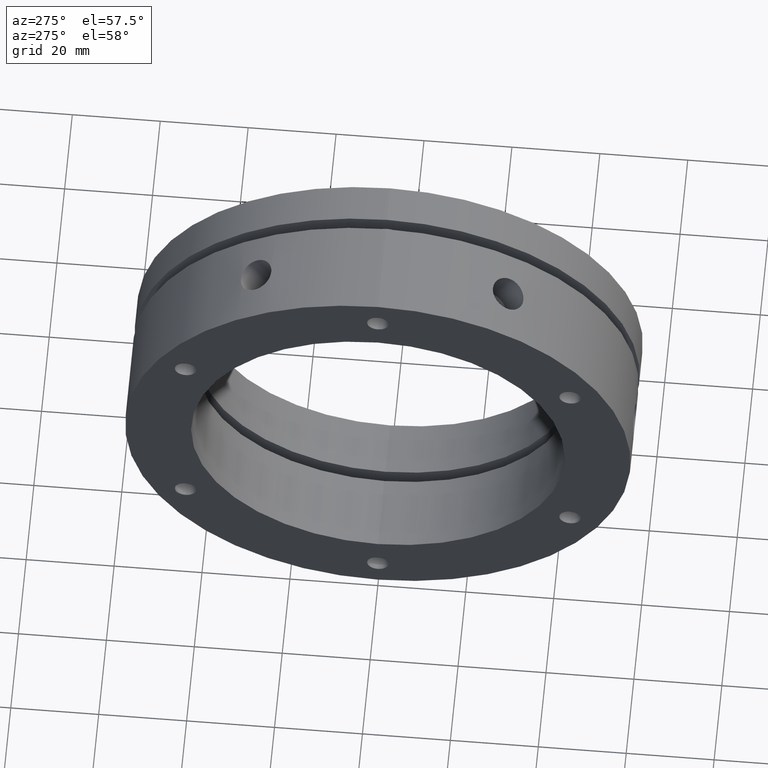
[diagram: clean part render]
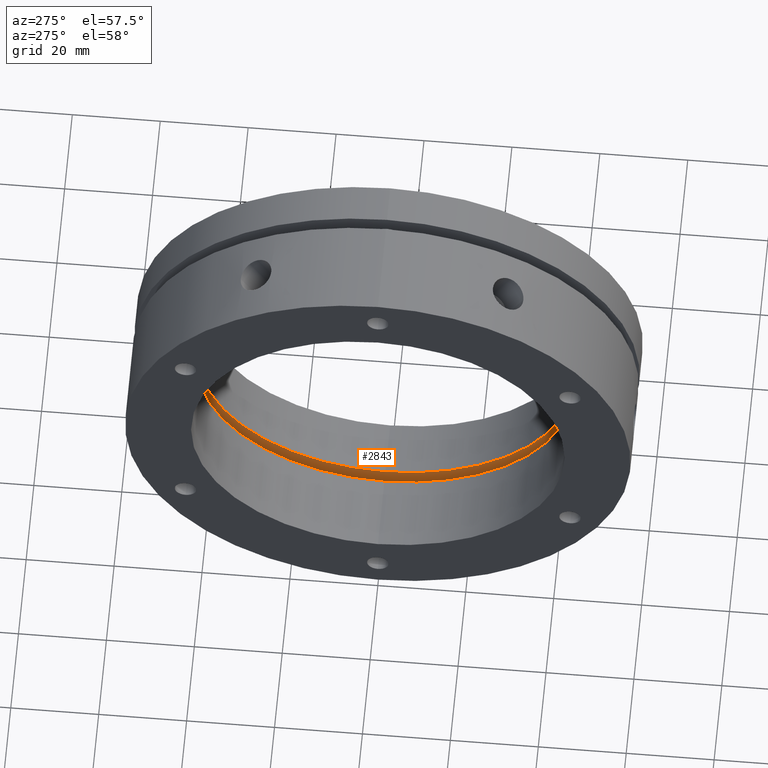
[diagram: same view with one face highlighted and labeled with its STEP entity id]
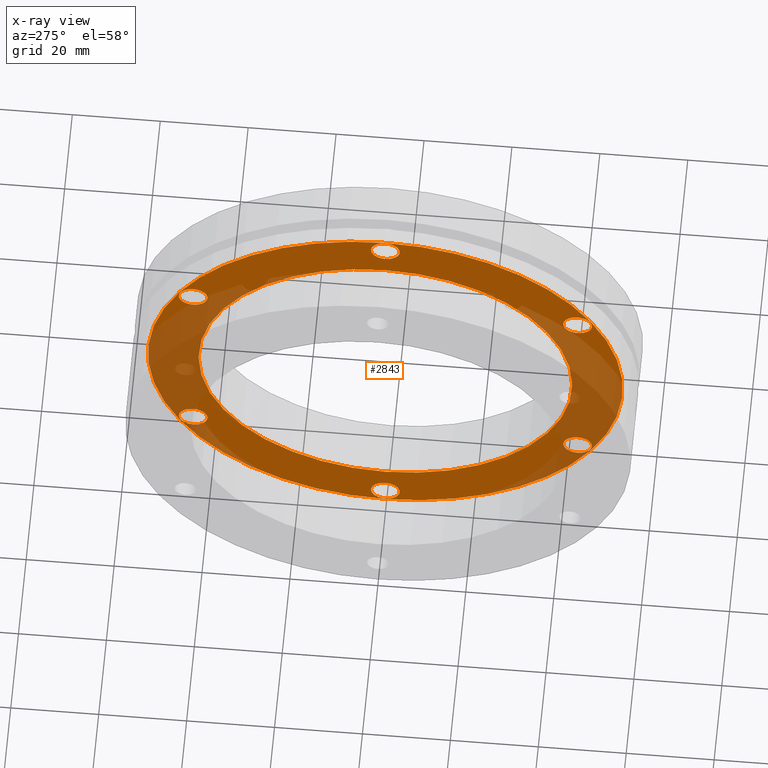
[diagram: x-ray of the same camera — body ghosted, the highlighted face saturated]
A machine part, auxiliary view. The second image highlights one B-rep face of the part: STEP entity #2843.
The next image is the same camera in x-ray: the body ghosted, the highlighted face saturated — about 36% of this face is hidden behind the body in this view.
In plain terms, the highlighted planar face has unit normal (1, 0, 0).
Its self-contained STEP definition (entity closure, byte-faithful):
#13 = EDGE_LOOP ( 'NONE', ( #1024, #1023 ) ) ;
#14 = EDGE_LOOP ( 'NONE', ( #1020, #1019 ) ) ;
#71 = EDGE_LOOP ( 'NONE', ( #1028, #1027 ) ) ;
#76 = EDGE_LOOP ( 'NONE', ( #1030, #1029 ) ) ;
#83 = EDGE_LOOP ( 'NONE', ( #1034, #1033 ) ) ;
#84 = EDGE_LOOP ( 'NONE', ( #1026, #1025 ) ) ;
#93 = EDGE_LOOP ( 'NONE', ( #1022, #1021 ) ) ;
#109 = EDGE_LOOP ( 'NONE', ( #1032, #1031 ) ) ;
#302 = VERTEX_POINT ( 'NONE', #1290 ) ;
#328 = VERTEX_POINT ( 'NONE', #1319 ) ;
#336 = VERTEX_POINT ( 'NONE', #1327 ) ;
#362 = VERTEX_POINT ( 'NONE', #1353 ) ;
#363 = VERTEX_POINT ( 'NONE', #1354 ) ;
#365 = VERTEX_POINT ( 'NONE', #1356 ) ;
#370 = VERTEX_POINT ( 'NONE', #1361 ) ;
#380 = VERTEX_POINT ( 'NONE', #1371 ) ;
#395 = VERTEX_POINT ( 'NONE', #1386 ) ;
#409 = VERTEX_POINT ( 'NONE', #1400 ) ;
#422 = VERTEX_POINT ( 'NONE', #1494 ) ;
#428 = VERTEX_POINT ( 'NONE', #1810 ) ;
#430 = VERTEX_POINT ( 'NONE', #1812 ) ;
#436 = VERTEX_POINT ( 'NONE', #1818 ) ;
#479 = VERTEX_POINT ( 'NONE', #1861 ) ;
#487 = VERTEX_POINT ( 'NONE', #1869 ) ;
#550 = AXIS2_PLACEMENT_3D ( 'NONE', #2345, #2346, #2347 ) ;
#552 = AXIS2_PLACEMENT_3D ( 'NONE', #2335, #2336, #2337 ) ;
#652 = EDGE_CURVE ( 'NONE', #422, #365, #4244, .T. ) ;
#656 = EDGE_CURVE ( 'NONE', #380, #479, #4251, .T. ) ;
#660 = EDGE_CURVE ( 'NONE', #328, #302, #4257, .T. ) ;
#664 = EDGE_CURVE ( 'NONE', #363, #336, #4263, .T. ) ;
#668 = EDGE_CURVE ( 'NONE', #436, #395, #4269, .T. ) ;
#672 = EDGE_CURVE ( 'NONE', #362, #409, #4275, .T. ) ;
#676 = EDGE_CURVE ( 'NONE', #370, #487, #4281, .T. ) ;
#708 = EDGE_CURVE ( 'NONE', #430, #428, #4328, .T. ) ;
#747 = AXIS2_PLACEMENT_3D ( 'NONE', #2694, #2695, #2696 ) ;
#785 = AXIS2_PLACEMENT_3D ( 'NONE', #2475, #2476, #2477 ) ;
#788 = AXIS2_PLACEMENT_3D ( 'NONE', #2355, #2356, #2357 ) ;
#816 = AXIS2_PLACEMENT_3D ( 'NONE', #2968, #2969, #2970 ) ;
#819 = AXIS2_PLACEMENT_3D ( 'NONE', #2959, #2960, #2961 ) ;
#833 = AXIS2_PLACEMENT_3D ( 'NONE', #2757, #2758, #2759 ) ;
#834 = AXIS2_PLACEMENT_3D ( 'NONE', #2753, #2754, #2755 ) ;
#835 = AXIS2_PLACEMENT_3D ( 'NONE', #2748, #2749, #2750 ) ;
#849 = AXIS2_PLACEMENT_3D ( 'NONE', #2365, #2366, #2367 ) ;
#850 = AXIS2_PLACEMENT_3D ( 'NONE', #2375, #2376, #2377 ) ;
#852 = AXIS2_PLACEMENT_3D ( 'NONE', #2385, #2386, #2387 ) ;
#855 = AXIS2_PLACEMENT_3D ( 'NONE', #2733, #2734, #2735 ) ;
#858 = AXIS2_PLACEMENT_3D ( 'NONE', #2730, #2731, #2732 ) ;
#867 = AXIS2_PLACEMENT_3D ( 'NONE', #2396, #2397, #2398 ) ;
#1019 = ORIENTED_EDGE ( 'NONE', *, *, #1674, .F. ) ;
#1020 = ORIENTED_EDGE ( 'NONE', *, *, #676, .F. ) ;
#1021 = ORIENTED_EDGE ( 'NONE', *, *, #672, .T. ) ;
#1022 = ORIENTED_EDGE ( 'NONE', *, *, #1650, .T. ) ;
#1023 = ORIENTED_EDGE ( 'NONE', *, *, #668, .T. ) ;
#1024 = ORIENTED_EDGE ( 'NONE', *, *, #1638, .T. ) ;
#1025 = ORIENTED_EDGE ( 'NONE', *, *, #664, .T. ) ;
#1026 = ORIENTED_EDGE ( 'NONE', *, *, #1651, .T. ) ;
#1027 = ORIENTED_EDGE ( 'NONE', *, *, #660, .T. ) ;
#1028 = ORIENTED_EDGE ( 'NONE', *, *, #1656, .T. ) ;
#1029 = ORIENTED_EDGE ( 'NONE', *, *, #656, .T. ) ;
#1030 = ORIENTED_EDGE ( 'NONE', *, *, #1658, .T. ) ;
#1031 = ORIENTED_EDGE ( 'NONE', *, *, #652, .T. ) ;
#1032 = ORIENTED_EDGE ( 'NONE', *, *, #1657, .T. ) ;
#1033 = ORIENTED_EDGE ( 'NONE', *, *, #1677, .F. ) ;
#1034 = ORIENTED_EDGE ( 'NONE', *, *, #708, .F. ) ;
#1290 = CARTESIAN_POINT ( 'NONE',  ( 19.49999999999998900, -43.73428289111417700, -28.50000000000000400 ) ) ;
#1319 = CARTESIAN_POINT ( 'NONE',  ( 19.49999999999998900, -43.73428289111417700, -22.00000000000000700 ) ) ;
#1327 = CARTESIAN_POINT ( 'NONE',  ( 19.49999999999998900, -8.881783999999999800E-015, -53.75000000000004300 ) ) ;
#1353 = CARTESIAN_POINT ( 'NONE',  ( 19.49999999999998900, 43.73428289111419800, 28.49999999999997900 ) ) ;
#1354 = CARTESIAN_POINT ( 'NONE',  ( 19.49999999999998900, -8.483773790277109000E-015, -47.25000000000003600 ) ) ;
#1356 = CARTESIAN_POINT ( 'NONE',  ( 19.49999999999998900, 0.0000000000000000000, 47.25000000000002800 ) ) ;
#1361 = CARTESIAN_POINT ( 'NONE',  ( 19.49999999999999600, 0.0000000000000000000, 54.00000000000000000 ) ) ;
#1371 = CARTESIAN_POINT ( 'NONE',  ( 19.49999999999998900, -43.73428289111416900, 28.50000000000001800 ) ) ;
#1386 = CARTESIAN_POINT ( 'NONE',  ( 19.49999999999998900, 43.73428289111416200, -28.50000000000003600 ) ) ;
#1400 = CARTESIAN_POINT ( 'NONE',  ( 19.49999999999998900, 43.73428289111419800, 21.99999999999998200 ) ) ;
#1494 = CARTESIAN_POINT ( 'NONE',  ( 19.49999999999998900, 3.980102097228895300E-016, 53.75000000000003600 ) ) ;
#1638 = EDGE_CURVE ( 'NONE', #395, #436, #4446, .T. ) ;
#1650 = EDGE_CURVE ( 'NONE', #409, #362, #4458, .T. ) ;
#1651 = EDGE_CURVE ( 'NONE', #336, #363, #4459, .T. ) ;
#1656 = EDGE_CURVE ( 'NONE', #302, #328, #4464, .T. ) ;
#1657 = EDGE_CURVE ( 'NONE', #365, #422, #4465, .T. ) ;
#1658 = EDGE_CURVE ( 'NONE', #479, #380, #4466, .T. ) ;
#1674 = EDGE_CURVE ( 'NONE', #487, #370, #4484, .T. ) ;
#1677 = EDGE_CURVE ( 'NONE', #428, #430, #4487, .T. ) ;
#1794 = AXIS2_PLACEMENT_3D ( 'NONE', #3340, #3334, #3344 ) ;
#1810 = CARTESIAN_POINT ( 'NONE',  ( 19.50000000000000000, 5.204748896376250900E-015, 42.50000000000000000 ) ) ;
#1812 = CARTESIAN_POINT ( 'NONE',  ( 19.50000000000000000, 0.0000000000000000000, -42.50000000000000000 ) ) ;
#1818 = CARTESIAN_POINT ( 'NONE',  ( 19.49999999999998900, 43.73428289111416200, -22.00000000000003600 ) ) ;
#1861 = CARTESIAN_POINT ( 'NONE',  ( 19.49999999999998900, -43.73428289111416900, 22.00000000000002100 ) ) ;
#1869 = CARTESIAN_POINT ( 'NONE',  ( 19.49999999999999600, 6.613092715395707500E-015, -54.00000000000000000 ) ) ;
#2335 = CARTESIAN_POINT ( 'NONE',  ( 19.49999999999998900, 0.0000000000000000000, 50.50000000000002800 ) ) ;
#2336 = DIRECTION ( 'NONE',  ( 1.000000000000000000, 0.0000000000000000000, 0.0000000000000000000 ) ) ;
#2337 = DIRECTION ( 'NONE',  ( 0.0000000000000000000, 0.0000000000000000000, -1.000000000000000000 ) ) ;
#2345 = CARTESIAN_POINT ( 'NONE',  ( 19.49999999999998900, -43.73428289111416900, 25.25000000000001800 ) ) ;
#2346 = DIRECTION ( 'NONE',  ( 1.000000000000000000, 0.0000000000000000000, 0.0000000000000000000 ) ) ;
#2347 = DIRECTION ( 'NONE',  ( 0.0000000000000000000, 0.0000000000000000000, -1.000000000000000000 ) ) ;
#2355 = CARTESIAN_POINT ( 'NONE',  ( 19.49999999999998900, -43.73428289111417700, -25.25000000000000400 ) ) ;
#2356 = DIRECTION ( 'NONE',  ( 1.000000000000000000, 0.0000000000000000000, 0.0000000000000000000 ) ) ;
#2357 = DIRECTION ( 'NONE',  ( 0.0000000000000000000, 0.0000000000000000000, -1.000000000000000000 ) ) ;
#2365 = CARTESIAN_POINT ( 'NONE',  ( 19.49999999999998900, -8.881783999999999800E-015, -50.50000000000003600 ) ) ;
#2366 = DIRECTION ( 'NONE',  ( 1.000000000000000000, 0.0000000000000000000, 0.0000000000000000000 ) ) ;
#2367 = DIRECTION ( 'NONE',  ( 0.0000000000000000000, 0.0000000000000000000, -1.000000000000000000 ) ) ;
#2375 = CARTESIAN_POINT ( 'NONE',  ( 19.49999999999998900, 43.73428289111416200, -25.25000000000003600 ) ) ;
#2376 = DIRECTION ( 'NONE',  ( 1.000000000000000000, 0.0000000000000000000, 0.0000000000000000000 ) ) ;
#2377 = DIRECTION ( 'NONE',  ( 0.0000000000000000000, 0.0000000000000000000, -1.000000000000000000 ) ) ;
#2385 = CARTESIAN_POINT ( 'NONE',  ( 19.49999999999998900, 43.73428289111419800, 25.24999999999998200 ) ) ;
#2386 = DIRECTION ( 'NONE',  ( 1.000000000000000000, 0.0000000000000000000, 0.0000000000000000000 ) ) ;
#2387 = DIRECTION ( 'NONE',  ( 0.0000000000000000000, 0.0000000000000000000, -1.000000000000000000 ) ) ;
#2396 = CARTESIAN_POINT ( 'NONE',  ( 19.49999999999999600, 0.0000000000000000000, 0.0000000000000000000 ) ) ;
#2397 = DIRECTION ( 'NONE',  ( 1.000000000000000000, -0.0000000000000000000, -0.0000000000000000000 ) ) ;
#2398 = DIRECTION ( 'NONE',  ( 0.0000000000000000000, 0.0000000000000000000, 1.000000000000000000 ) ) ;
#2475 = CARTESIAN_POINT ( 'NONE',  ( 19.50000000000000000, 0.0000000000000000000, 0.0000000000000000000 ) ) ;
#2476 = DIRECTION ( 'NONE',  ( -1.000000000000000000, -0.0000000000000000000, -0.0000000000000000000 ) ) ;
#2477 = DIRECTION ( 'NONE',  ( 0.0000000000000000000, 0.0000000000000000000, -1.000000000000000000 ) ) ;
#2694 = CARTESIAN_POINT ( 'NONE',  ( 19.49999999999998900, 43.73428289111416200, -25.25000000000003600 ) ) ;
#2695 = DIRECTION ( 'NONE',  ( 1.000000000000000000, 0.0000000000000000000, 0.0000000000000000000 ) ) ;
#2696 = DIRECTION ( 'NONE',  ( 0.0000000000000000000, 0.0000000000000000000, -1.000000000000000000 ) ) ;
#2730 = CARTESIAN_POINT ( 'NONE',  ( 19.49999999999998900, 43.73428289111419800, 25.24999999999998200 ) ) ;
#2731 = DIRECTION ( 'NONE',  ( 1.000000000000000000, 0.0000000000000000000, 0.0000000000000000000 ) ) ;
#2732 = DIRECTION ( 'NONE',  ( 0.0000000000000000000, 0.0000000000000000000, -1.000000000000000000 ) ) ;
#2733 = CARTESIAN_POINT ( 'NONE',  ( 19.49999999999998900, -8.881783999999999800E-015, -50.50000000000003600 ) ) ;
#2734 = DIRECTION ( 'NONE',  ( 1.000000000000000000, 0.0000000000000000000, 0.0000000000000000000 ) ) ;
#2735 = DIRECTION ( 'NONE',  ( 0.0000000000000000000, 0.0000000000000000000, -1.000000000000000000 ) ) ;
#2748 = CARTESIAN_POINT ( 'NONE',  ( 19.49999999999998900, -43.73428289111417700, -25.25000000000000400 ) ) ;
#2749 = DIRECTION ( 'NONE',  ( 1.000000000000000000, 0.0000000000000000000, 0.0000000000000000000 ) ) ;
#2750 = DIRECTION ( 'NONE',  ( 0.0000000000000000000, 0.0000000000000000000, -1.000000000000000000 ) ) ;
#2753 = CARTESIAN_POINT ( 'NONE',  ( 19.49999999999998900, 0.0000000000000000000, 50.50000000000002800 ) ) ;
#2754 = DIRECTION ( 'NONE',  ( 1.000000000000000000, 0.0000000000000000000, 0.0000000000000000000 ) ) ;
#2755 = DIRECTION ( 'NONE',  ( 0.0000000000000000000, 0.0000000000000000000, -1.000000000000000000 ) ) ;
#2757 = CARTESIAN_POINT ( 'NONE',  ( 19.49999999999998900, -43.73428289111416900, 25.25000000000001800 ) ) ;
#2758 = DIRECTION ( 'NONE',  ( 1.000000000000000000, 0.0000000000000000000, 0.0000000000000000000 ) ) ;
#2759 = DIRECTION ( 'NONE',  ( 0.0000000000000000000, 0.0000000000000000000, -1.000000000000000000 ) ) ;
#2843 = ADVANCED_FACE ( 'NONE', ( #4677, #4680, #4676, #4675, #4678, #4681, #4682, #4683 ), #3342, .F. ) ;
#2959 = CARTESIAN_POINT ( 'NONE',  ( 19.49999999999999600, 0.0000000000000000000, 0.0000000000000000000 ) ) ;
#2960 = DIRECTION ( 'NONE',  ( 1.000000000000000000, -0.0000000000000000000, -0.0000000000000000000 ) ) ;
#2961 = DIRECTION ( 'NONE',  ( 0.0000000000000000000, 0.0000000000000000000, 1.000000000000000000 ) ) ;
#2968 = CARTESIAN_POINT ( 'NONE',  ( 19.50000000000000000, 0.0000000000000000000, 0.0000000000000000000 ) ) ;
#2969 = DIRECTION ( 'NONE',  ( -1.000000000000000000, -0.0000000000000000000, -0.0000000000000000000 ) ) ;
#2970 = DIRECTION ( 'NONE',  ( 0.0000000000000000000, 0.0000000000000000000, -1.000000000000000000 ) ) ;
#3334 = DIRECTION ( 'NONE',  ( 1.000000000000000000, -0.0000000000000000000, 0.0000000000000000000 ) ) ;
#3340 = CARTESIAN_POINT ( 'NONE',  ( 19.50000000000000000, 27.00000000000000000, 0.0000000000000000000 ) ) ;
#3342 = PLANE ( 'NONE',  #1794 ) ;
#3344 = DIRECTION ( 'NONE',  ( 0.0000000000000000000, 0.0000000000000000000, -1.000000000000000000 ) ) ;
#4244 = CIRCLE ( 'NONE', #552, 3.250000000000002700 ) ;
#4251 = CIRCLE ( 'NONE', #550, 3.249999999999999600 ) ;
#4257 = CIRCLE ( 'NONE', #788, 3.249999999999999600 ) ;
#4263 = CIRCLE ( 'NONE', #849, 3.250000000000002700 ) ;
#4269 = CIRCLE ( 'NONE', #850, 3.249999999999999600 ) ;
#4275 = CIRCLE ( 'NONE', #852, 3.249999999999999600 ) ;
#4281 = CIRCLE ( 'NONE', #867, 54.00000000000000000 ) ;
#4328 = CIRCLE ( 'NONE', #785, 42.50000000000000000 ) ;
#4446 = CIRCLE ( 'NONE', #747, 3.249999999999999600 ) ;
#4458 = CIRCLE ( 'NONE', #858, 3.249999999999999600 ) ;
#4459 = CIRCLE ( 'NONE', #855, 3.250000000000002700 ) ;
#4464 = CIRCLE ( 'NONE', #835, 3.249999999999999600 ) ;
#4465 = CIRCLE ( 'NONE', #834, 3.250000000000002700 ) ;
#4466 = CIRCLE ( 'NONE', #833, 3.249999999999999600 ) ;
#4484 = CIRCLE ( 'NONE', #819, 54.00000000000000000 ) ;
#4487 = CIRCLE ( 'NONE', #816, 42.50000000000000000 ) ;
#4675 = FACE_BOUND ( 'NONE', #71, .T. ) ;
#4676 = FACE_BOUND ( 'NONE', #76, .T. ) ;
#4677 = FACE_BOUND ( 'NONE', #83, .T. ) ;
#4678 = FACE_BOUND ( 'NONE', #84, .T. ) ;
#4680 = FACE_BOUND ( 'NONE', #109, .T. ) ;
#4681 = FACE_BOUND ( 'NONE', #13, .T. ) ;
#4682 = FACE_BOUND ( 'NONE', #93, .T. ) ;
#4683 = FACE_OUTER_BOUND ( 'NONE', #14, .T. ) ;